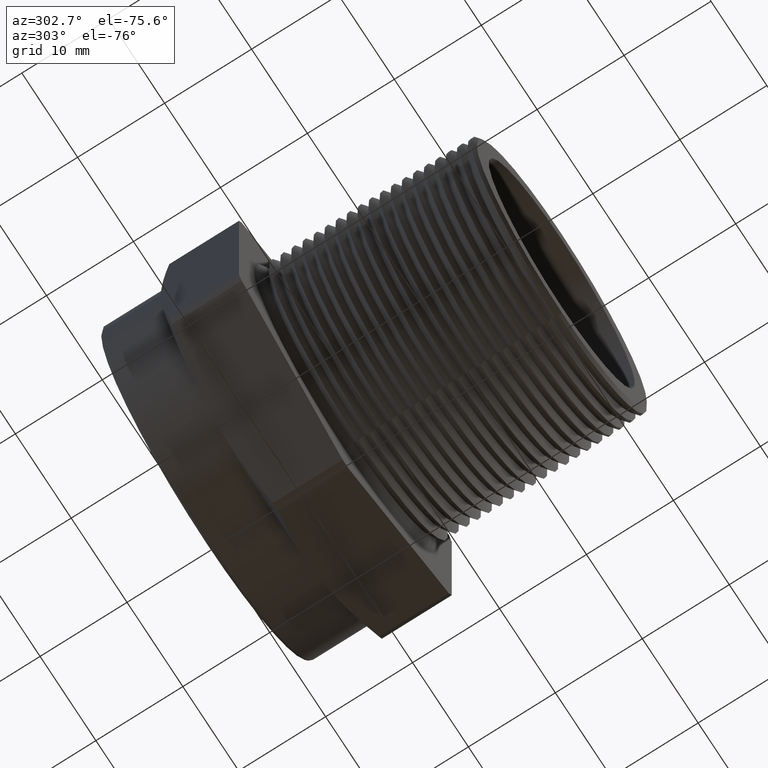
[diagram: clean part render]
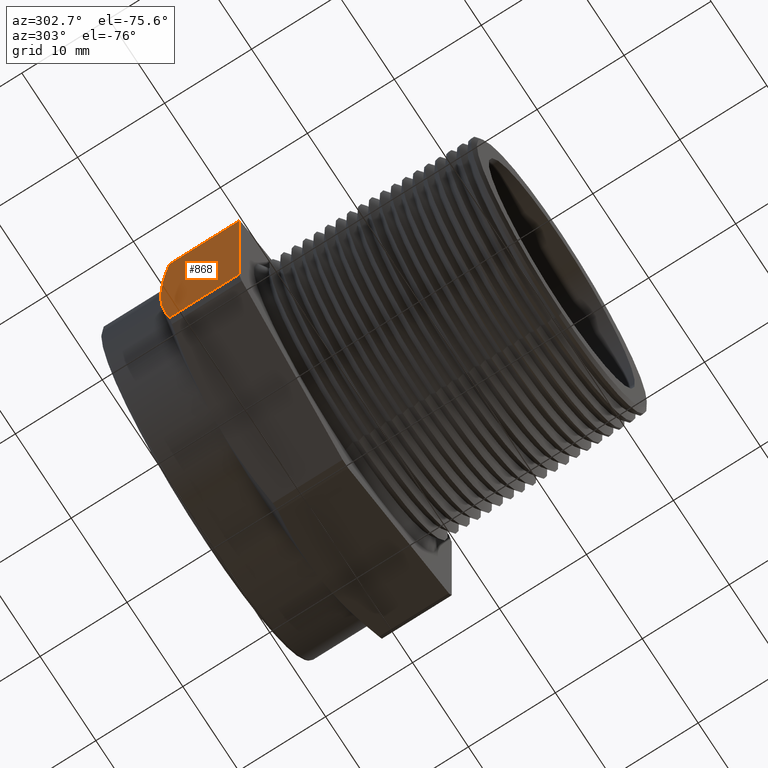
[diagram: same view with one face highlighted and labeled with its STEP entity id]
A machine part, auxiliary view. The second image highlights one B-rep face of the part: STEP entity #868.
In plain terms, the highlighted planar face has unit normal (-1, 0, -0).
Its self-contained STEP definition (entity closure, byte-faithful):
#784 = EDGE_CURVE ( 'NONE', #785, #786, #2989, .T. ) ;
#785 = VERTEX_POINT ( 'NONE', #2985 ) ;
#786 = VERTEX_POINT ( 'NONE', #2984 ) ;
#791 = VERTEX_POINT ( 'NONE', #3036 ) ;
#792 = ORIENTED_EDGE ( 'NONE', *, *, #793, .T. ) ;
#793 = EDGE_CURVE ( 'NONE', #791, #786, #3035, .T. ) ;
#794 = ORIENTED_EDGE ( 'NONE', *, *, #784, .F. ) ;
#795 = ORIENTED_EDGE ( 'NONE', *, *, #796, .F. ) ;
#796 = EDGE_CURVE ( 'NONE', #829, #785, #3034, .T. ) ;
#811 = EDGE_LOOP ( 'NONE', ( #869, #870, #792, #794, #795 ) ) ;
#826 = VERTEX_POINT ( 'NONE', #3088 ) ;
#828 = EDGE_CURVE ( 'NONE', #826, #829, #3081, .T. ) ;
#829 = VERTEX_POINT ( 'NONE', #3077 ) ;
#868 = ADVANCED_FACE ( 'NONE', ( #3159 ), #3162, .T. ) ;
#869 = ORIENTED_EDGE ( 'NONE', *, *, #828, .F. ) ;
#870 = ORIENTED_EDGE ( 'NONE', *, *, #871, .T. ) ;
#871 = EDGE_CURVE ( 'NONE', #826, #791, #3210, .T. ) ;
#2984 = CARTESIAN_POINT ( 'NONE',  ( -0.7500000000000001100, 1.295983125402049100, -0.4105179655021201100 ) ) ;
#2985 = CARTESIAN_POINT ( 'NONE',  ( -0.7500000000000001100, 0.9799999999999999800, -0.4105179655021201100 ) ) ;
#2986 = DIRECTION ( 'NONE',  ( 0.0000000000000000000, 1.000000000000000000, 0.0000000000000000000 ) ) ;
#2987 = VECTOR ( 'NONE', #2986, 39.37007874015748100 ) ;
#2988 = CARTESIAN_POINT ( 'NONE',  ( -0.7500000000000002200, 0.0000000000000000000, -0.4105179655021201100 ) ) ;
#2989 = LINE ( 'NONE', #2988, #2987 ) ;
#3025 = DIRECTION ( 'NONE',  ( 1.577233174527201400E-016, 0.0000000000000000000, -1.000000000000000000 ) ) ;
#3026 = VECTOR ( 'NONE', #3025, 39.37007874015748100 ) ;
#3027 = CARTESIAN_POINT ( 'NONE',  ( -0.7500000000000001100, 1.295983125402049100, -0.4105179655021201100 ) ) ;
#3028 = CARTESIAN_POINT ( 'NONE',  ( -0.7500000000000001100, 1.307867909125591100, -0.3425100659729651300 ) ) ;
#3029 = CARTESIAN_POINT ( 'NONE',  ( -0.7500000000000002200, 1.317578798349474400, -0.2737722628984887200 ) ) ;
#3030 = CARTESIAN_POINT ( 'NONE',  ( -0.7500000000000002200, 1.330743275485198700, -0.1367566331022844200 ) ) ;
#3031 = CARTESIAN_POINT ( 'NONE',  ( -0.7500000000000001100, 1.334199999999999800, -0.06833220494034590600 ) ) ;
#3032 = CARTESIAN_POINT ( 'NONE',  ( -0.7500000000000002200, 1.334199999999999800, -1.182924880895401300E-016 ) ) ;
#3033 = CARTESIAN_POINT ( 'NONE',  ( -0.7500000000000002200, 0.9799999999999999800, 0.4330127018922194100 ) ) ;
#3034 = LINE ( 'NONE', #3033, #3026 ) ;
#3035 = B_SPLINE_CURVE_WITH_KNOTS ( 'NONE', 3,
 ( #3032, #3031, #3030, #3029, #3028, #3027 ),
 .UNSPECIFIED., .F., .F.,
 ( 4, 2, 4 ),
 ( 0.04897857080270220200, 0.05421681958575127300, 0.05945506836880034400 ),
 .UNSPECIFIED. ) ;
#3036 = CARTESIAN_POINT ( 'NONE',  ( -0.7500000000000002200, 1.334199999999999800, -1.182924880895401300E-016 ) ) ;
#3077 = CARTESIAN_POINT ( 'NONE',  ( -0.7500000000000002200, 0.9799999999999999800, 0.4105179655021198300 ) ) ;
#3078 = DIRECTION ( 'NONE',  ( -0.0000000000000000000, -1.000000000000000000, -0.0000000000000000000 ) ) ;
#3079 = VECTOR ( 'NONE', #3078, 39.37007874015748100 ) ;
#3080 = CARTESIAN_POINT ( 'NONE',  ( -0.7500000000000002200, 0.0000000000000000000, 0.4105179655021198300 ) ) ;
#3081 = LINE ( 'NONE', #3080, #3079 ) ;
#3088 = CARTESIAN_POINT ( 'NONE',  ( -0.7500000000000002200, 1.295983125402049100, 0.4105179655021198300 ) ) ;
#3151 = AXIS2_PLACEMENT_3D ( 'NONE', #3160, #3158, #3212 ) ;
#3158 = DIRECTION ( 'NONE',  ( -1.000000000000000000, 0.0000000000000000000, -1.577233174527201100E-016 ) ) ;
#3159 = FACE_OUTER_BOUND ( 'NONE', #811, .T. ) ;
#3160 = CARTESIAN_POINT ( 'NONE',  ( -0.7500000000000002200, 1.610000000000000100, 0.4330127018922194100 ) ) ;
#3162 = PLANE ( 'NONE',  #3151 ) ;
#3201 = CARTESIAN_POINT ( 'NONE',  ( -0.7500000000000002200, 1.334199999999999800, -1.182924880895401300E-016 ) ) ;
#3202 = CARTESIAN_POINT ( 'NONE',  ( -0.7500000000000002200, 1.334199999999999800, 0.06858959458686320100 ) ) ;
#3203 = CARTESIAN_POINT ( 'NONE',  ( -0.7500000000000003300, 1.330718615111496300, 0.1370863080289761200 ) ) ;
#3204 = CARTESIAN_POINT ( 'NONE',  ( -0.7500000000000003300, 1.317558104362896300, 0.2739143831078873500 ) ) ;
#3205 = CARTESIAN_POINT ( 'NONE',  ( -0.7500000000000001100, 1.307913937834032100, 0.3422466774375099700 ) ) ;
#3206 = CARTESIAN_POINT ( 'NONE',  ( -0.7500000000000002200, 1.295983125402049100, 0.4105179655021198300 ) ) ;
#3210 = B_SPLINE_CURVE_WITH_KNOTS ( 'NONE', 3,
 ( #3206, #3205, #3204, #3203, #3202, #3201 ),
 .UNSPECIFIED., .F., .F.,
 ( 4, 2, 4 ),
 ( 0.03846261099464017700, 0.04372059089867119000, 0.04897857080270220200 ),
 .UNSPECIFIED. ) ;
#3212 = DIRECTION ( 'NONE',  ( -1.577233174527201100E-016, 0.0000000000000000000, 1.000000000000000000 ) ) ;